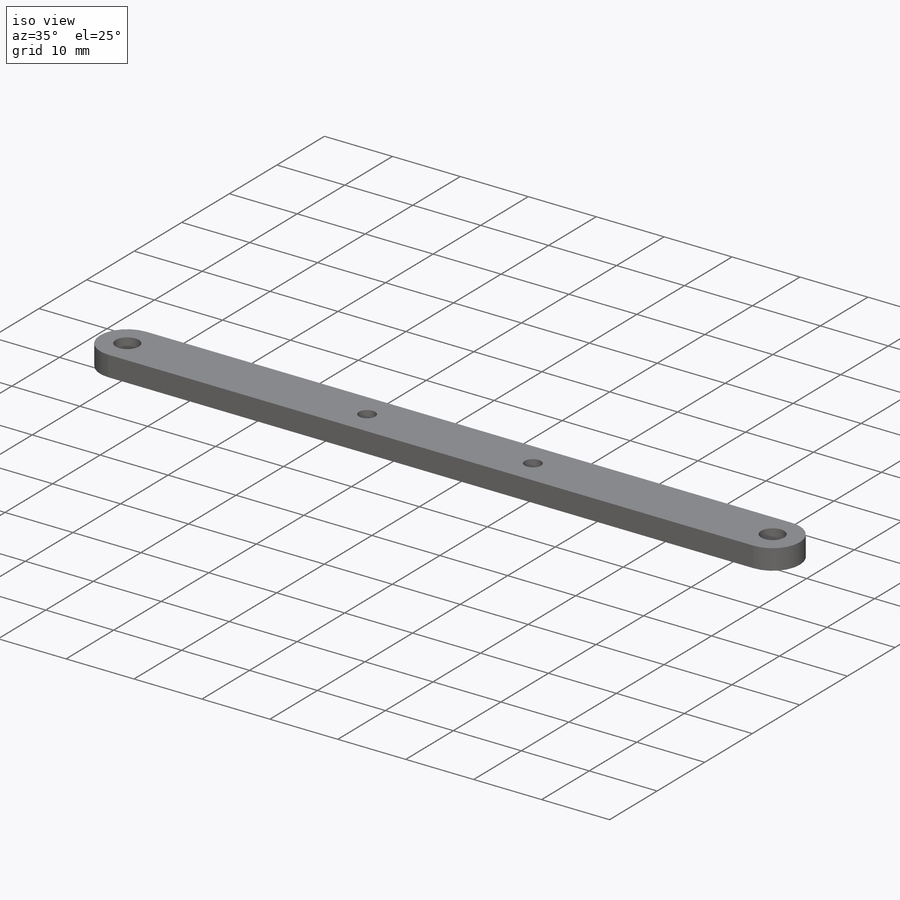
[diagram: iso view]
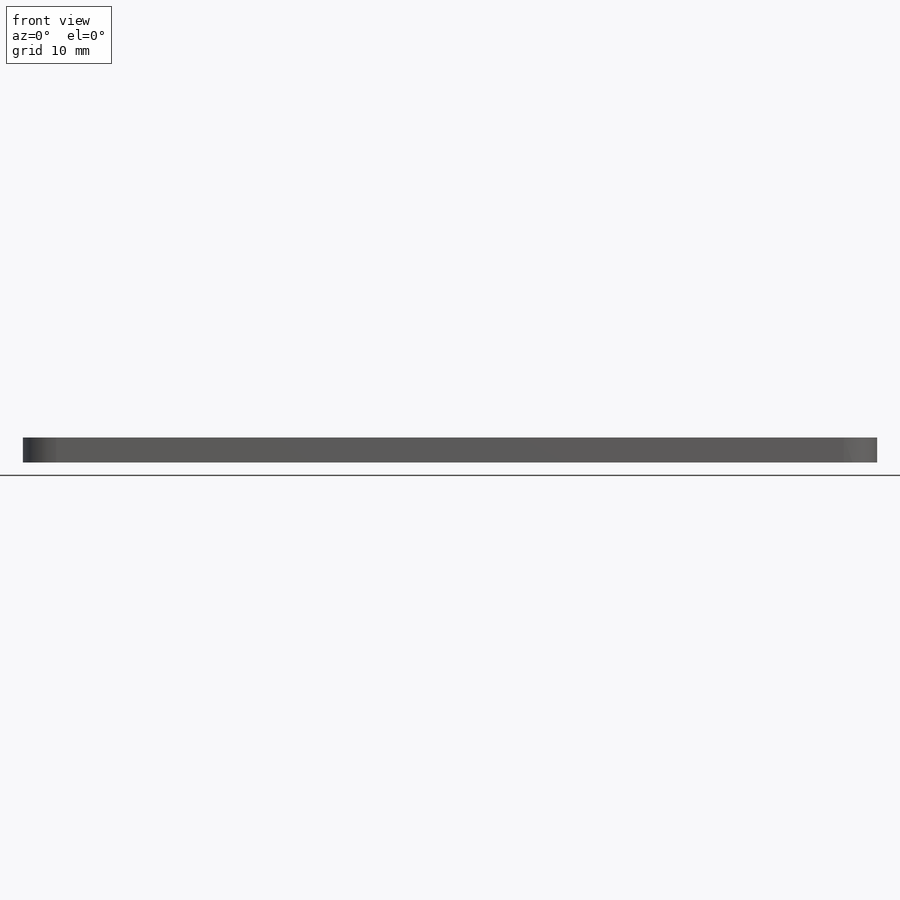
[diagram: front view]
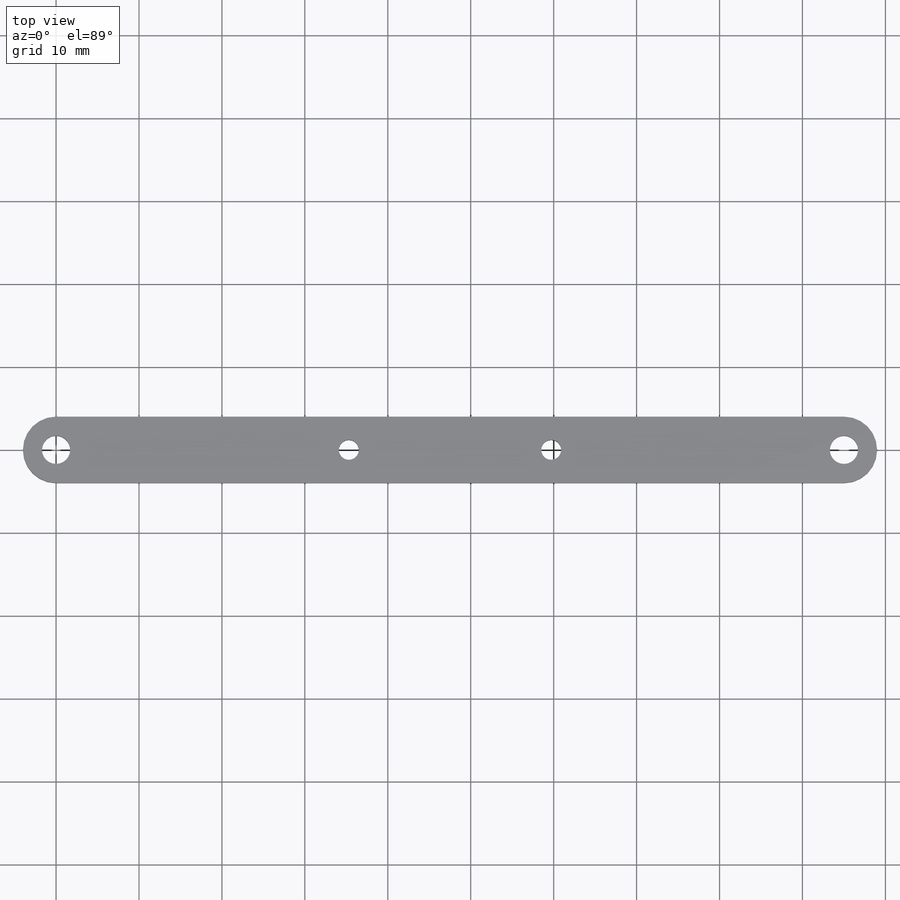
[diagram: top view]
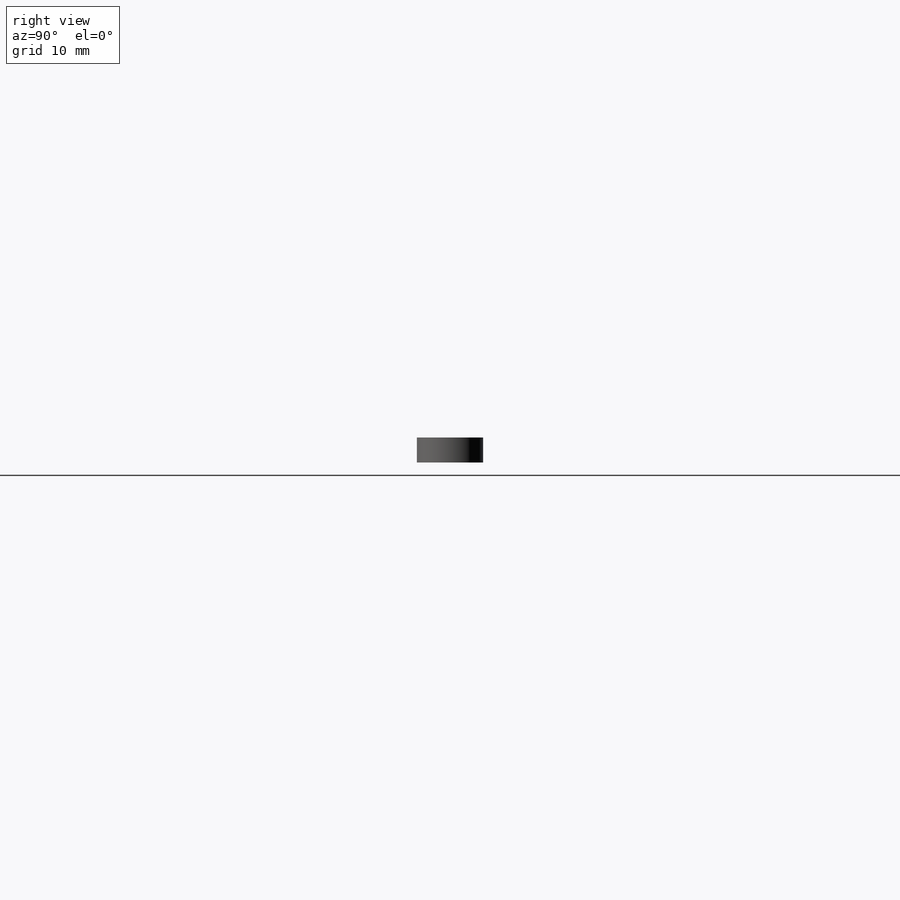
[diagram: right view]
SOLIDWORKS PART (.sldprt)
format: sldprt  version: not decoded by parser v0  size: 183,296 bytes
history: native  units: mm
features: sketch x5, hole x2, material x1, extrude x1 (+12 scaffold rows collapsed)
feature tree (21):
  scaffold x12  (default folders/planes/origin — collapsed)
  material  "Material <not specified>"
  sketch  "Sketch1"  dims[D1=95.0mm D2=8.0mm]
  extrude  "Boss-Extrude1"  Depth=3mm
  hole  "M3 Clearance Hole1"  Diameter=3.4mm Depth=3mm
  sketch  "Sketch3"
  sketch  "Sketch4"  dims[hole-wizard template sketch: 60 standard entries collapsed; hole parameters kept: c18.Thru Hole Depth=3.0mm]
  hole  "M2 Clearance Hole1"  Diameter=2.4mm Depth=3mm
  sketch  "Sketch6"  dims[c1.D3=~26.536518mm c1.D1=26.8mm c1.D2=26.8mm c2.D3=~3.045148mm c2.D2=~9.764723mm c2.D1=12.2mm c3.D2=12.2mm]
  sketch  "Sketch5"  dims[hole-wizard template sketch: 60 standard entries collapsed; hole parameters kept: c18.Thru Hole Depth=3.0mm]
decode coverage: 7 of 8 modeling features carry decoded parameters
note: ~ marks probable driven/reference dimensions
note: suppression state not decoded; provenance and decode notes live in map.json
